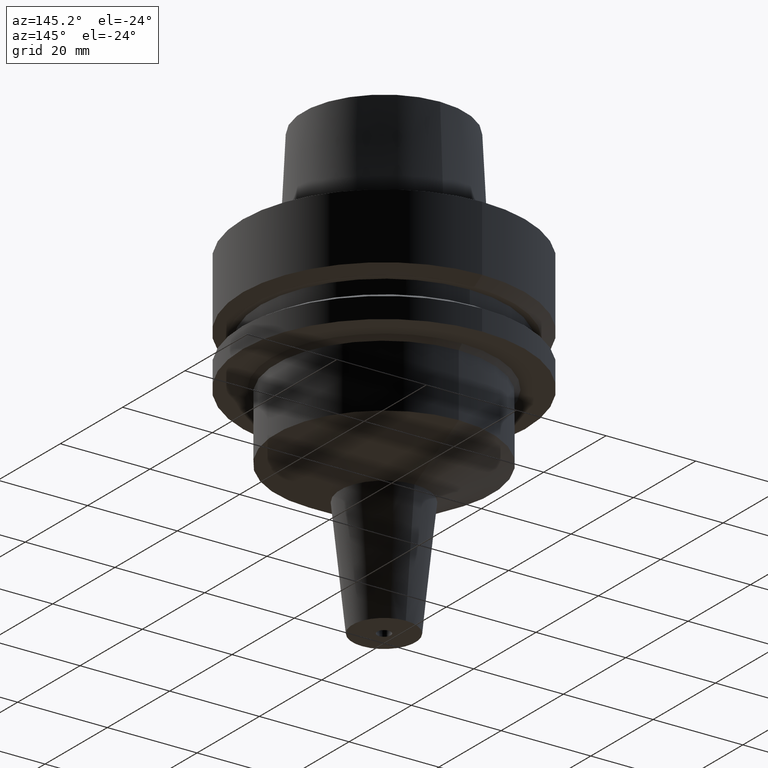
[diagram: clean part render]
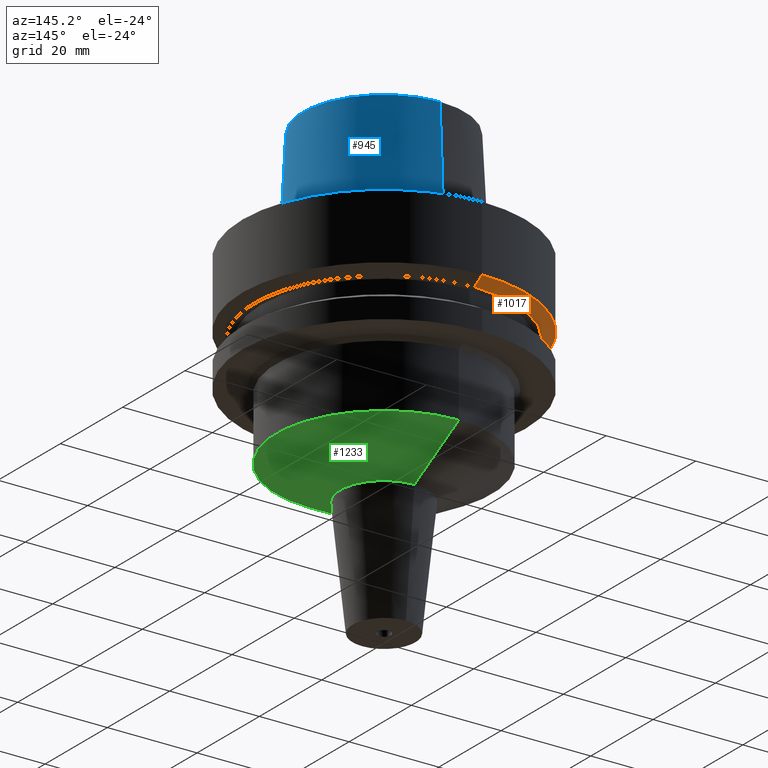
[diagram: same view with three faces highlighted in distinct colors, each labeled with its STEP entity id]
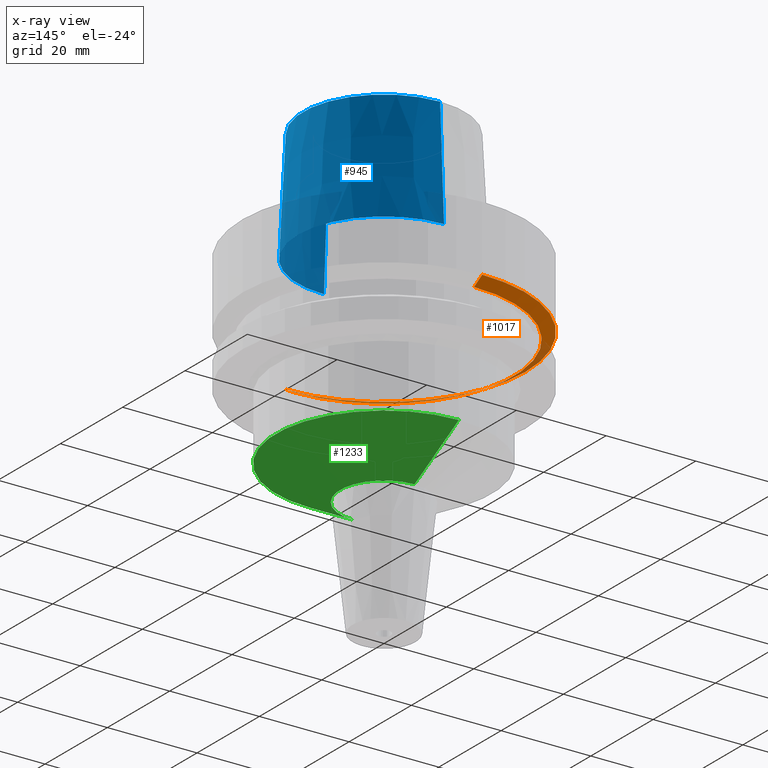
[diagram: x-ray of the same camera — body ghosted, the three highlighted faces saturated]
A machine part, auxiliary view with three faces highlighted in distinct colors.
The next image is the same camera in x-ray (body ghosted, the three faces saturated) — at least one of them is partly hidden behind the body in this view.
Their STEP definitions:

[orange] entity #1017 — the highlighted conical surface has half-angle 60 deg.
#110=DIRECTION('',(0.E0,-8.660254037844E-1,-5.000000000001E-1));
#111=VECTOR('',#110,3.004998149520E0);
#112=CARTESIAN_POINT('',(0.E0,3.15E1,-1.462250092524E1));
#113=LINE('',#112,#111);
#125=CARTESIAN_POINT('',(0.E0,0.E0,-1.462250092524E1));
#126=DIRECTION('',(0.E0,0.E0,1.E0));
#127=DIRECTION('',(0.E0,1.E0,0.E0));
#128=AXIS2_PLACEMENT_3D('',#125,#126,#127);
#133=DIRECTION('',(0.E0,8.660254037844E-1,-5.000000000001E-1));
#134=VECTOR('',#133,3.004998149520E0);
#135=CARTESIAN_POINT('',(0.E0,-3.15E1,-1.462250092524E1));
#136=LINE('',#135,#134);
#148=CARTESIAN_POINT('',(0.E0,0.E0,-1.6125E1));
#149=DIRECTION('',(0.E0,0.E0,1.E0));
#150=DIRECTION('',(0.E0,1.E0,0.E0));
#151=AXIS2_PLACEMENT_3D('',#148,#149,#150);
#884=CARTESIAN_POINT('',(0.E0,-2.889759526419E1,-1.6125E1));
#885=CARTESIAN_POINT('',(0.E0,2.889759526419E1,-1.6125E1));
#886=VERTEX_POINT('',#884);
#887=VERTEX_POINT('',#885);
#888=CARTESIAN_POINT('',(0.E0,3.15E1,-1.462250092524E1));
#889=VERTEX_POINT('',#888);
#890=CARTESIAN_POINT('',(0.E0,-3.15E1,-1.462250092524E1));
#891=VERTEX_POINT('',#890);
#1005=CARTESIAN_POINT('',(0.E0,0.E0,-1.537375046262E1));
#1006=DIRECTION('',(0.E0,0.E0,1.E0));
#1007=DIRECTION('',(0.E0,1.E0,0.E0));
#1008=AXIS2_PLACEMENT_3D('',#1005,#1006,#1007);
#1009=CONICAL_SURFACE('',#1008,3.019879763210E1,6.E1);
#1010=ORIENTED_EDGE('',*,*,#995,.F.);
#1011=ORIENTED_EDGE('',*,*,#972,.T.);
#1012=ORIENTED_EDGE('',*,*,#999,.T.);
#1014=ORIENTED_EDGE('',*,*,#1013,.F.);
#1015=EDGE_LOOP('',(#1010,#1011,#1012,#1014));
#1016=FACE_OUTER_BOUND('',#1015,.F.);
#129=CIRCLE('',#128,3.15E1);
#152=CIRCLE('',#151,2.889759526419E1);
#972=EDGE_CURVE('',#889,#891,#129,.T.);
#995=EDGE_CURVE('',#889,#887,#113,.T.);
#999=EDGE_CURVE('',#891,#886,#136,.T.);
#1013=EDGE_CURVE('',#887,#886,#152,.T.);
#1017=ADVANCED_FACE('',(#1016),#1009,.T.);

[blue] entity #945 — the highlighted conical surface has half-angle 2.862 deg.
#26=CARTESIAN_POINT('',(0.E0,0.E0,2.5E1));
#27=DIRECTION('',(0.E0,0.E0,-1.E0));
#28=DIRECTION('',(0.E0,1.E0,0.E0));
#29=AXIS2_PLACEMENT_3D('',#26,#27,#28);
#50=DIRECTION('',(0.E0,-4.993752584487E-2,-9.987523434328E-1));
#51=VECTOR('',#50,2.503123037897E1);
#52=CARTESIAN_POINT('',(0.E0,-1.800000182882E1,2.5E1));
#53=LINE('',#52,#51);
#57=DIRECTION('',(0.E0,4.993752584487E-2,-9.987523434328E-1));
#58=VECTOR('',#57,2.503123037897E1);
#59=CARTESIAN_POINT('',(0.E0,1.800000182882E1,2.5E1));
#60=LINE('',#59,#58);
#80=CARTESIAN_POINT('',(0.E0,0.E0,2.273736754432E-13));
#81=DIRECTION('',(0.E0,0.E0,1.E0));
#82=DIRECTION('',(0.E0,-1.E0,0.E0));
#83=AXIS2_PLACEMENT_3D('',#80,#81,#82);
#780=CARTESIAN_POINT('',(0.E0,-1.800000182882E1,2.5E1));
#781=CARTESIAN_POINT('',(0.E0,1.800000182882E1,2.5E1));
#782=VERTEX_POINT('',#780);
#783=VERTEX_POINT('',#781);
#896=CARTESIAN_POINT('',(0.E0,-1.924999954280E1,2.273736754432E-13));
#897=CARTESIAN_POINT('',(0.E0,1.924999954280E1,2.273736754432E-13));
#898=VERTEX_POINT('',#896);
#899=VERTEX_POINT('',#897);
#933=CARTESIAN_POINT('',(0.E0,0.E0,1.25E1));
#934=DIRECTION('',(0.E0,0.E0,-1.E0));
#935=DIRECTION('',(0.E0,-1.E0,0.E0));
#936=AXIS2_PLACEMENT_3D('',#933,#934,#935);
#937=CONICAL_SURFACE('',#936,1.862500068581E1,2.8624E0);
#938=ORIENTED_EDGE('',*,*,#923,.T.);
#940=ORIENTED_EDGE('',*,*,#939,.F.);
#941=ORIENTED_EDGE('',*,*,#926,.F.);
#942=ORIENTED_EDGE('',*,*,#907,.F.);
#943=EDGE_LOOP('',(#938,#940,#941,#942));
#944=FACE_OUTER_BOUND('',#943,.F.);
#30=CIRCLE('',#29,1.800000182882E1);
#84=CIRCLE('',#83,1.924999954280E1);
#907=EDGE_CURVE('',#783,#782,#30,.T.);
#923=EDGE_CURVE('',#783,#899,#60,.T.);
#926=EDGE_CURVE('',#782,#898,#53,.T.);
#939=EDGE_CURVE('',#898,#899,#84,.T.);
#945=ADVANCED_FACE('',(#944),#937,.T.);

[green] entity #1233 — the highlighted conical surface has half-angle 61.6 deg.
#346=DIRECTION('',(0.E0,8.796485728667E-1,-4.756242090702E-1));
#347=VECTOR('',#346,1.618311238153E1);
#348=CARTESIAN_POINT('',(0.E0,-2.4E1,-4.1E1));
#349=LINE('',#348,#347);
#361=DIRECTION('',(0.E0,-8.796485728667E-1,-4.756242090702E-1));
#362=VECTOR('',#361,1.618311238153E1);
#363=CARTESIAN_POINT('',(0.E0,2.4E1,-4.1E1));
#364=LINE('',#363,#362);
#368=CARTESIAN_POINT('',(0.E0,0.E0,-4.1E1));
#369=DIRECTION('',(0.E0,0.E0,1.E0));
#370=DIRECTION('',(0.E0,-1.E0,0.E0));
#371=AXIS2_PLACEMENT_3D('',#368,#369,#370);
#383=CARTESIAN_POINT('',(0.E0,0.E0,-4.869708002676E1));
#384=DIRECTION('',(0.E0,0.E0,1.E0));
#385=DIRECTION('',(0.E0,-1.E0,0.E0));
#386=AXIS2_PLACEMENT_3D('',#383,#384,#385);
#848=CARTESIAN_POINT('',(0.E0,9.764548289042E0,-4.869708002676E1));
#849=VERTEX_POINT('',#848);
#850=CARTESIAN_POINT('',(0.E0,-9.764548289042E0,-4.869708002676E1));
#851=VERTEX_POINT('',#850);
#852=CARTESIAN_POINT('',(0.E0,2.4E1,-4.1E1));
#853=VERTEX_POINT('',#852);
#854=CARTESIAN_POINT('',(0.E0,-2.4E1,-4.1E1));
#855=VERTEX_POINT('',#854);
#1221=CARTESIAN_POINT('',(0.E0,0.E0,-4.484854001338E1));
#1222=DIRECTION('',(0.E0,0.E0,1.E0));
#1223=DIRECTION('',(0.E0,1.E0,0.E0));
#1224=AXIS2_PLACEMENT_3D('',#1221,#1222,#1223);
#1225=CONICAL_SURFACE('',#1224,1.688227414452E1,6.16E1);
#1226=ORIENTED_EDGE('',*,*,#1211,.T.);
#1228=ORIENTED_EDGE('',*,*,#1227,.F.);
#1229=ORIENTED_EDGE('',*,*,#1214,.F.);
#1230=ORIENTED_EDGE('',*,*,#1185,.T.);
#1231=EDGE_LOOP('',(#1226,#1228,#1229,#1230));
#1232=FACE_OUTER_BOUND('',#1231,.F.);
#372=CIRCLE('',#371,2.4E1);
#387=CIRCLE('',#386,9.764548289042E0);
#1185=EDGE_CURVE('',#855,#853,#372,.T.);
#1211=EDGE_CURVE('',#853,#849,#364,.T.);
#1214=EDGE_CURVE('',#855,#851,#349,.T.);
#1227=EDGE_CURVE('',#851,#849,#387,.T.);
#1233=ADVANCED_FACE('',(#1232),#1225,.T.);